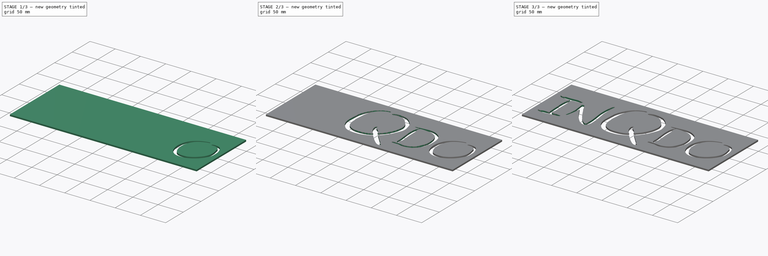
[diagram: build sequence overview — one tinted view per stage of 3, left to right]
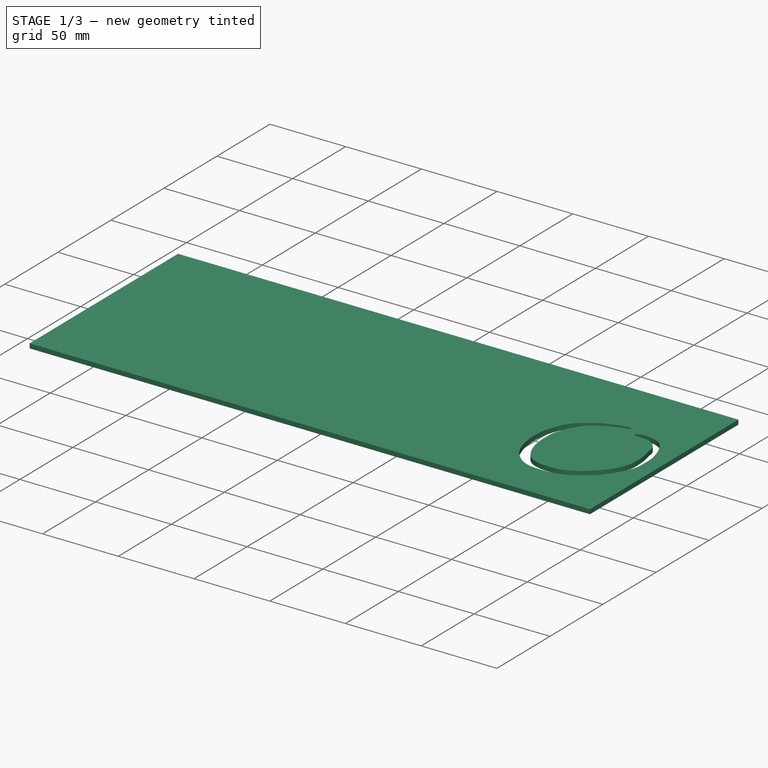
[diagram: stage 1 of 3 — iso view after this stage's code; geometry added in this stage tinted green]
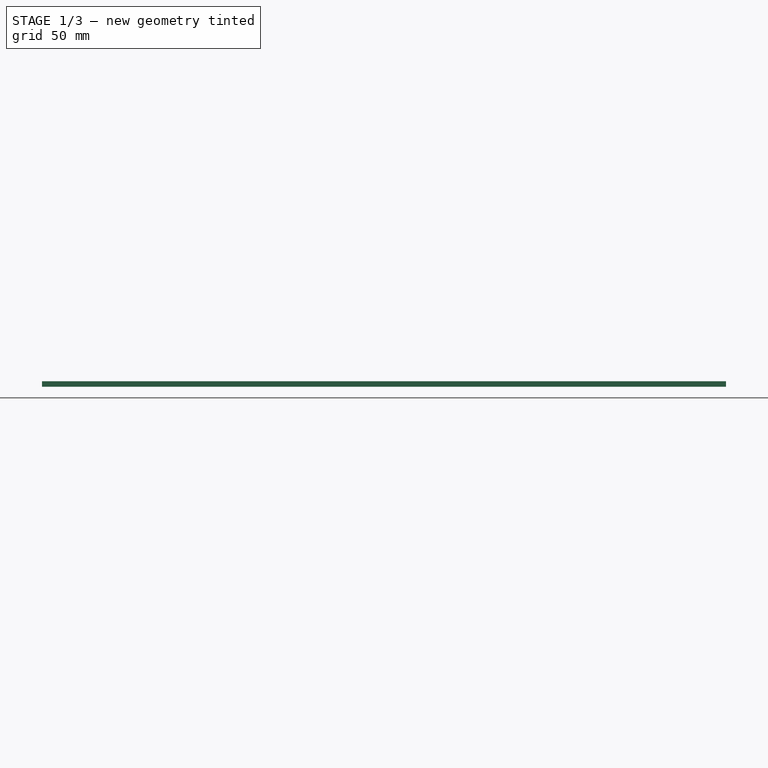
[diagram: stage 1 of 3 — front view after this stage's code; geometry added in this stage tinted green]
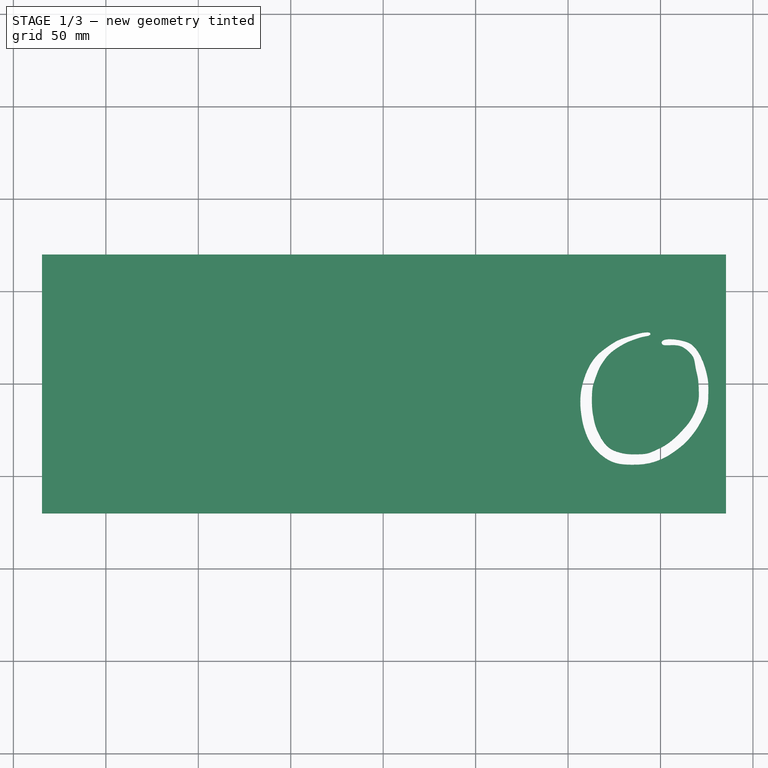
[diagram: stage 1 of 3 — top view after this stage's code; geometry added in this stage tinted green]
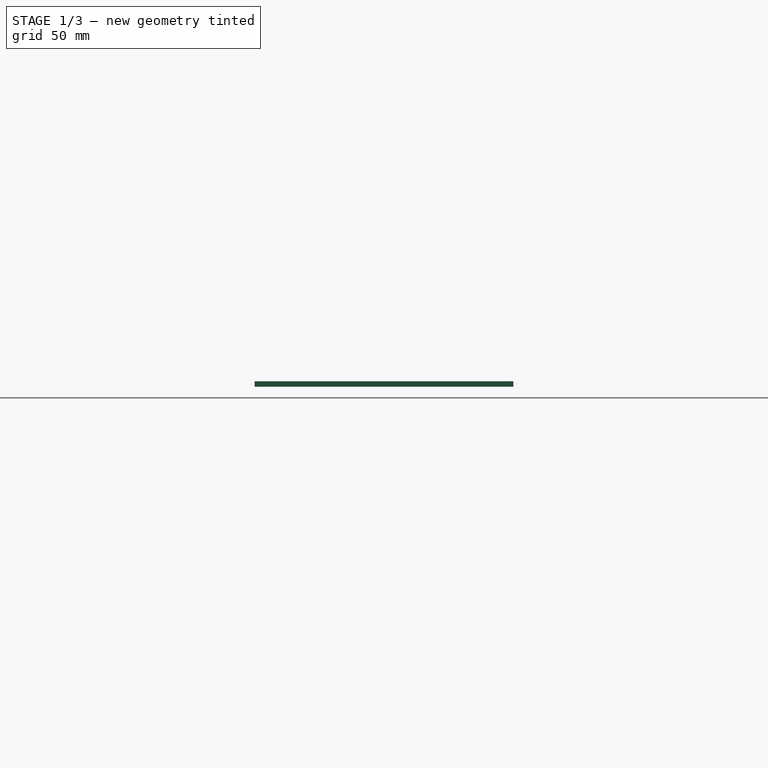
[diagram: stage 1 of 3 — right view after this stage's code; geometry added in this stage tinted green]
FCSTD DOCUMENT  (FreeCAD 0.19R)
Label: inqdoLogo
License: All rights reserved
LicenseURL: http://en.wikipedia.org/wiki/All_rights_reserved
objects: App::MeasureDistance×21, Sketcher::SketchObject×6, PartDesign::Pocket×5, PartDesign::Pad×1, PartDesign::Body×1
note: 19 computed .brp shape members not serialized (recipe doc carries the construction recipe); baked Part::Feature solids carry a one-line shape summary decoded from their .brp

FEATURE [Sketcher::SketchObject] Sketch005
  FullyConstrained = false
  MapMode = 5
  Support = -> [XY_Plane]
  sketch-geometry (4):
    g0: LineSegment StartX=-184.555 StartY=69.9349 StartZ=0 EndX=185.445 EndY=69.9349 EndZ=0
    g1: LineSegment StartX=185.445 StartY=69.9349 StartZ=0 EndX=185.445 EndY=-70.0651 EndZ=0
    g2: LineSegment StartX=185.445 StartY=-70.0651 StartZ=0 EndX=-184.555 EndY=-70.0651 EndZ=0
    g3: LineSegment StartX=-184.555 StartY=-70.0651 StartZ=0 EndX=-184.555 EndY=69.9349 EndZ=0
  constraints (10):
    c: Coincident(g0,g1)
    c: Coincident(g1,g2)
    c: Coincident(g2,g3)
    c: Coincident(g3,g0)
    c: Horizontal(g0)
    c: Horizontal(g2)
    c: Vertical(g1)
    c: Vertical(g3)
    c: DistanceX(g0,g0) = 370
    c: DistanceY(g3,g3) = 140
FEATURE [PartDesign::Pad] Pad
  Direction = (0,0,1)
  Length = 3
  Length2 = 10
  Profile = -> Sketch005
  Type = 0
FEATURE [Sketcher::SketchObject] Sketch011  label="O001"
  FullyConstrained = false
  MapMode = 5
  Placement = pos=(0,0,3) rot=(0,0,1;0rad)
  Support = -> [Pad]
  sketch-geometry (239):
    g0-g119: Circle x120 (B-spline internal-alignment scaffolding for g120; pole/knot coordinates omitted)
    g120: BSplineCurve PolesCount=120 KnotsCount=118 Degree=3 IsPeriodic=0
    g121-g238: GeomPoint x118 (B-spline internal-alignment scaffolding for g120; pole/knot coordinates omitted)
  constraints (10):
    c: Weight(g0) = 1
    c: Equal(g0, g1-g117) x117
    c: PointOnObject(g117,g0)
    c: Equal(g0,g118)
    c: PointOnObject(g118,g117)
    c: Equal(g0,g119)
    c: Coincident(g120,g1)
    c: InternalAlignment(g0-g119 -> g120) x120
    c: InternalAlignment(g121-g238 -> g120) x118
    c: Coincident(g120,g120)
FEATURE [PartDesign::Pocket] Pocket
  BaseFeature = -> Pad
  Length = 3
  Length2 = 5
  Profile = -> Sketch011
  Type = 0
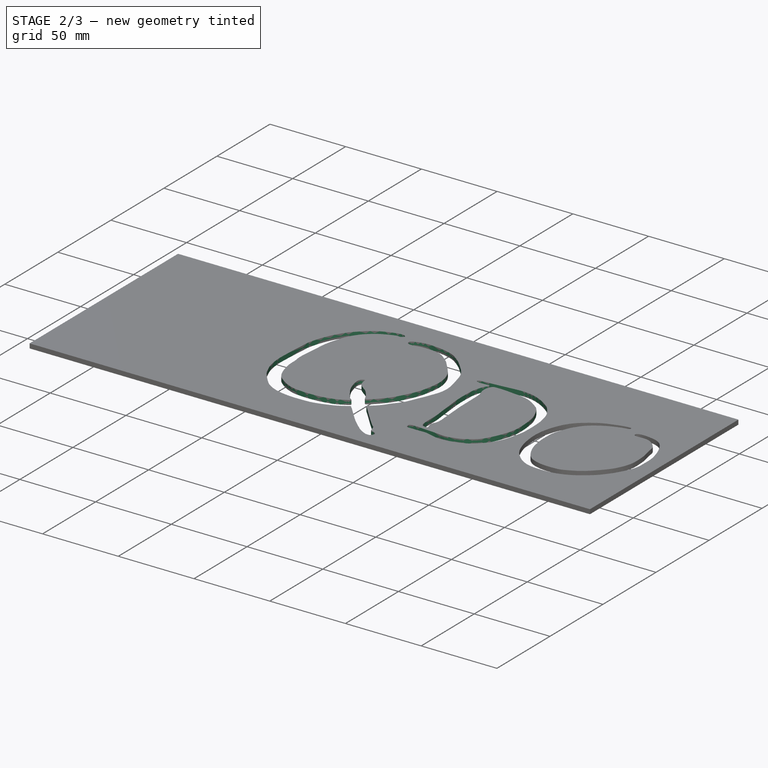
[diagram: stage 2 of 3 — iso view after this stage's code; geometry added in this stage tinted green]
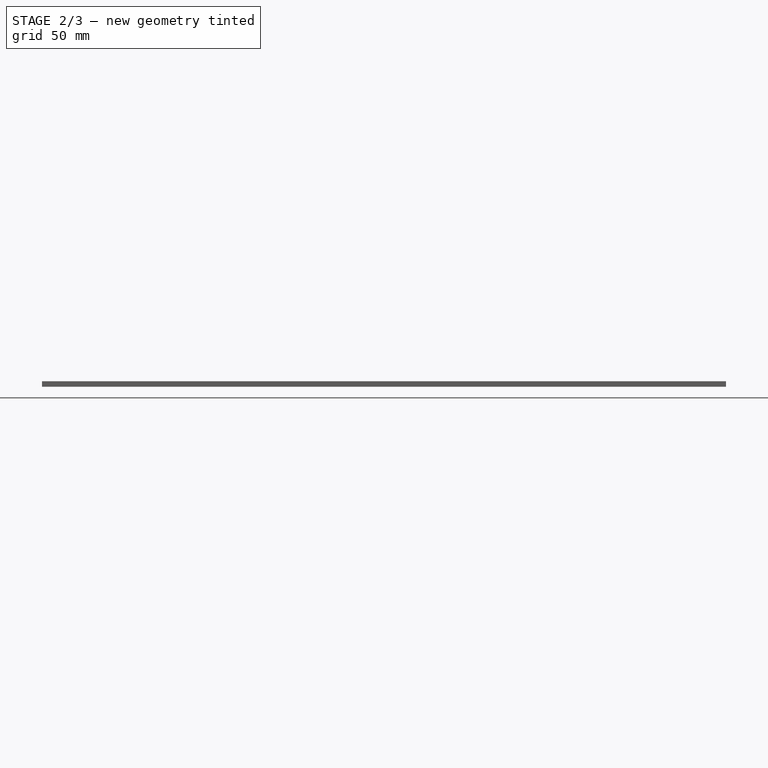
[diagram: stage 2 of 3 — front view after this stage's code; geometry added in this stage tinted green]
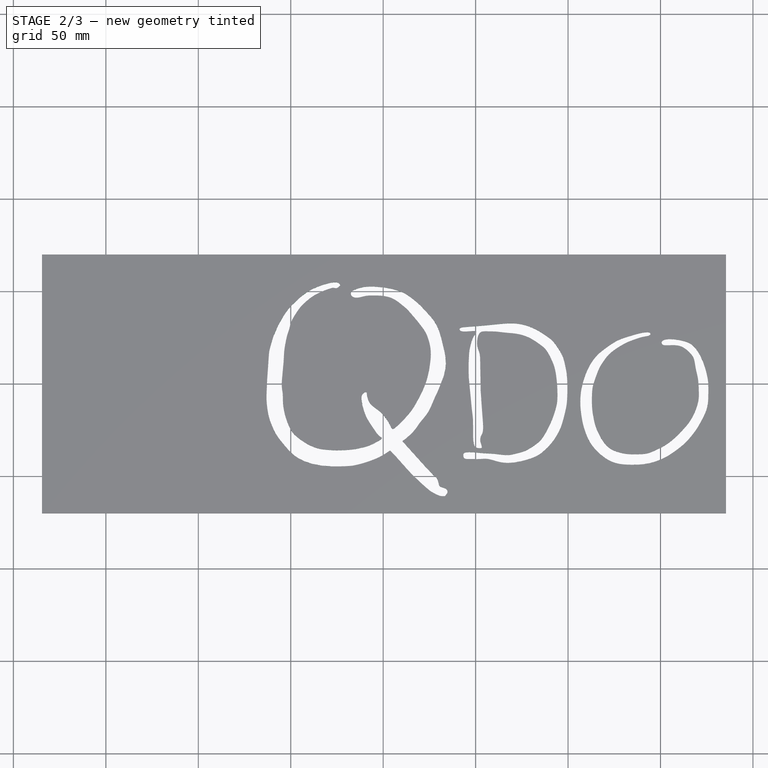
[diagram: stage 2 of 3 — top view after this stage's code; geometry added in this stage tinted green]
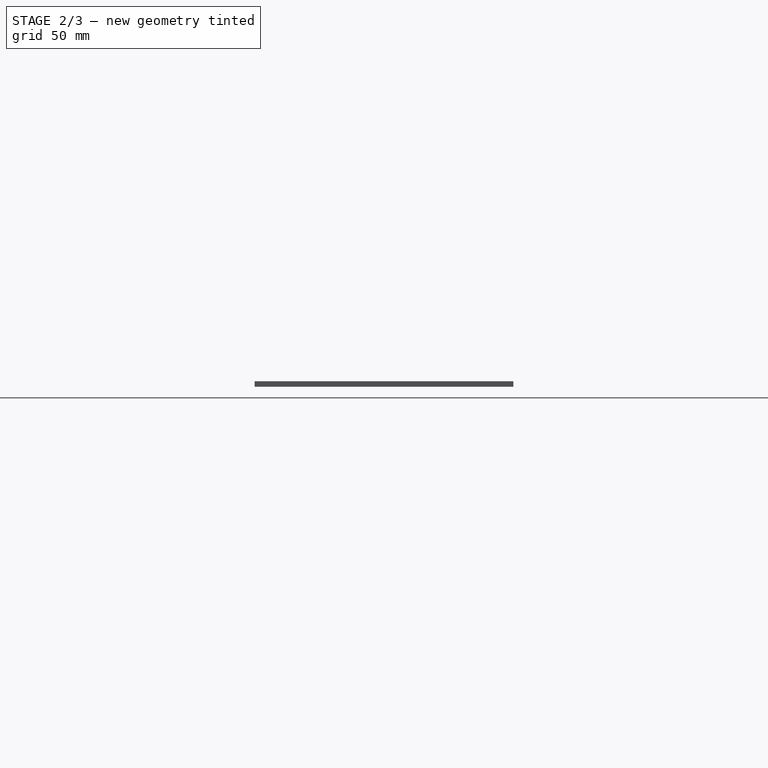
[diagram: stage 2 of 3 — right view after this stage's code; geometry added in this stage tinted green]
FEATURE [Sketcher::SketchObject] Sketch009  label="D001"
  FullyConstrained = false
  MapMode = 5
  Placement = pos=(0,0,3) rot=(0,0,1;0rad)
  Support = -> [Pocket]
  sketch-geometry (267):
    g0-g133: Circle x134 (B-spline internal-alignment scaffolding for g134; pole/knot coordinates omitted)
    g134: BSplineCurve PolesCount=134 KnotsCount=132 Degree=3 IsPeriodic=0
    g135-g266: GeomPoint x132 (B-spline internal-alignment scaffolding for g134; pole/knot coordinates omitted)
  constraints (22):
    c: Weight(g0) = 1
    c: Equal(g0,g1)
    c: PointOnObject(g1,g0)
    c: Equal(g0, g2-g122) x121
    c: PointOnObject(g122,g121)
    c: Equal(g0,g123)
    c: Equal(g0,g124)
    c: Equal(g0,g125)
    c: PointOnObject(g125,g124)
    c: Equal(g0,g126)
    c: Equal(g0,g127)
    c: Equal(g0,g128)
    c: PointOnObject(g128,g127)
    c: Equal(g0,g129)
    c: Equal(g0,g130)
    c: Equal(g0,g131)
    c: PointOnObject(g131,g129)
    c: Equal(g0,g132)
    c: Equal(g0,g133)
    c: Coincident(g134,g0)
    c: InternalAlignment(g0-g133 -> g134) x134
    c: InternalAlignment(g135-g266 -> g134) x132
FEATURE [PartDesign::Pocket] Pocket001
  BaseFeature = -> Pocket
  Length = 3
  Length2 = 5
  Profile = -> Sketch009
  Type = 0
FEATURE [Sketcher::SketchObject] Sketch008  label="Q001"
  FullyConstrained = false
  MapMode = 5
  Placement = pos=(0,0,3) rot=(0,0,1;0rad)
  Support = -> [Pocket001]
  sketch-geometry (471):
    g0-g235: Circle x236 (B-spline internal-alignment scaffolding for g236; pole/knot coordinates omitted)
    g236: BSplineCurve PolesCount=236 KnotsCount=234 Degree=3 IsPeriodic=0
    g237-g470: GeomPoint x234 (B-spline internal-alignment scaffolding for g236; pole/knot coordinates omitted)
  constraints (41):
    c: Weight(g0) = 1
    c: Equal(g0,g1)
    c: Equal(g0,g2)
    c: Equal(g0,g3)
    c: PointOnObject(g3,g1)
    c: Equal(g0, g4-g44) x41
    c: PointOnObject(g44,g-2)
    c: Equal(g0,g45)
    c: Equal(g0,g46)
    c: PointOnObject(g46,g45)
    c: Equal(g0, g47-g63) x17
    c: PointOnObject(g63,g61)
    c: Equal(g0,g64)
    c: PointOnObject(g64,g63)
    c: Equal(g0,g65)
    c: PointOnObject(g65,g64)
    c: Equal(g0, g66-g71) x6
    c: PointOnObject(g71,g70)
    c: Equal(g0,g72)
    c: Equal(g0,g73)
    c: Equal(g0,g74)
    c: PointOnObject(g74,g73)
    c: Equal(g0, g75-g85) x11
    c: PointOnObject(g85,g83)
    c: Equal(g0, g86-g124) x39
    c: PointOnObject(g124,g123)
    c: Equal(g0, g125-g170) x46
    c: PointOnObject(g170,g168)
    c: Equal(g0,g171)
    c: PointOnObject(g171,g170)
    c: Equal(g0, g172-g182) x11
    c: PointOnObject(g182,g181)
    c: Equal(g0,g183)
    c: Equal(g0,g184)
    c: PointOnObject(g184,g182)
    c: Equal(g0, g185-g230) x46
    c: PointOnObject(g230,g229)
    c: Equal(g0, g231-g235) x5
    c: Coincident(g236,g0)
    c: InternalAlignment(g0-g235 -> g236) x236
    c: InternalAlignment(g237-g470 -> g236) x234
FEATURE [PartDesign::Pocket] Pocket002
  BaseFeature = -> Pocket001
  Length = 3
  Length2 = 5
  Profile = -> Sketch008
  Type = 0
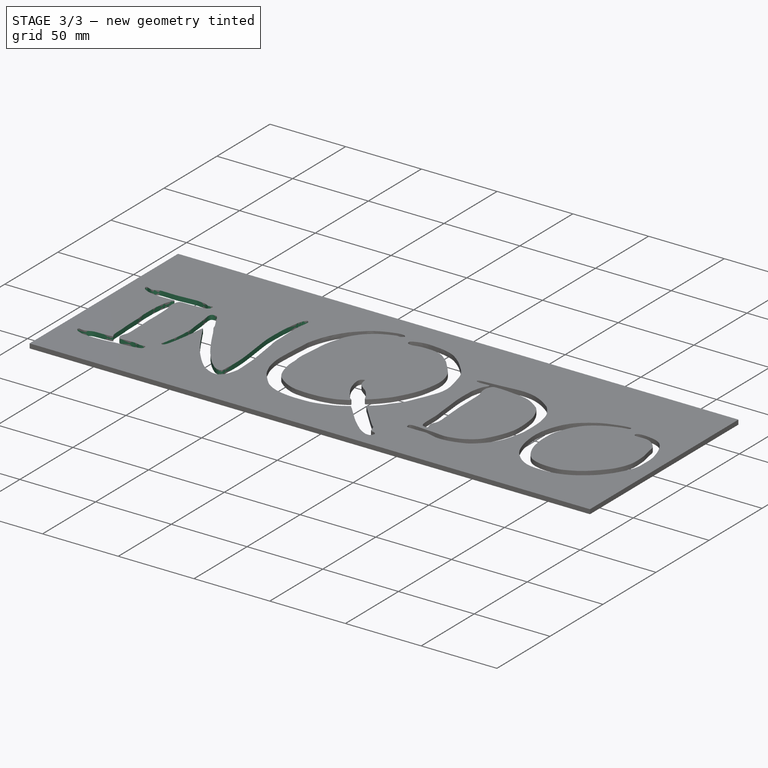
[diagram: stage 3 of 3 — iso view after this stage's code; geometry added in this stage tinted green]
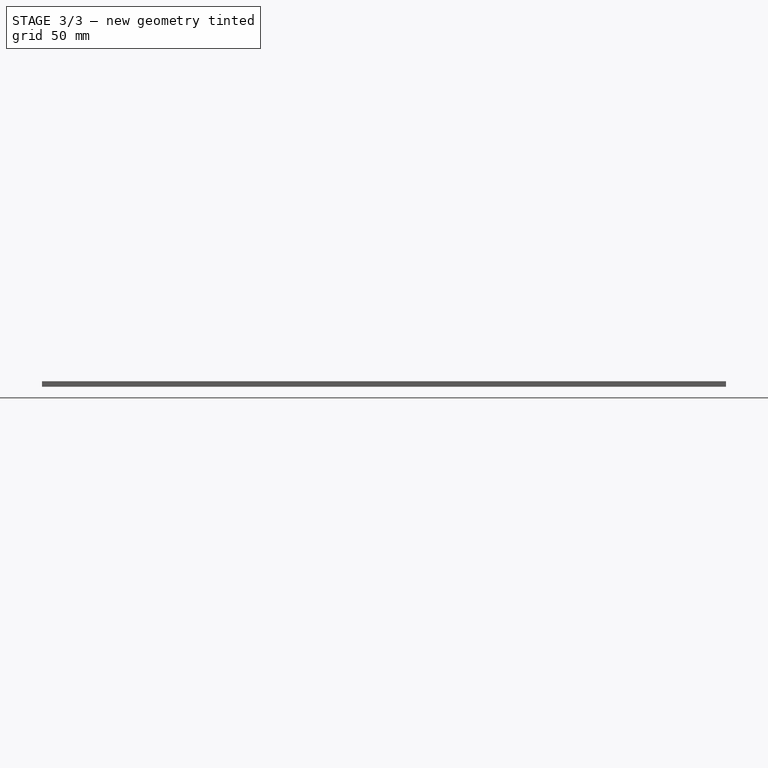
[diagram: stage 3 of 3 — front view after this stage's code; geometry added in this stage tinted green]
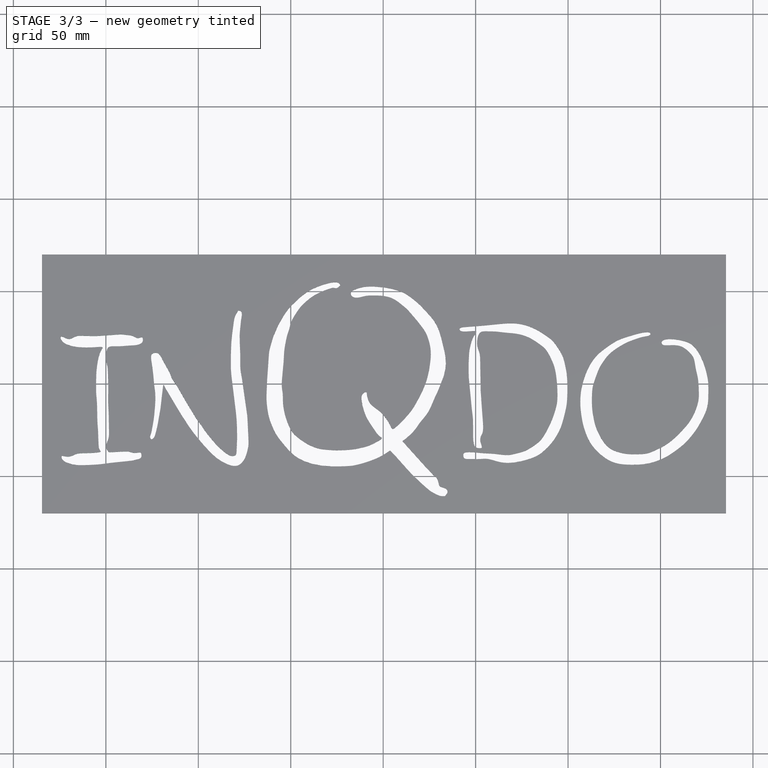
[diagram: stage 3 of 3 — top view after this stage's code; geometry added in this stage tinted green]
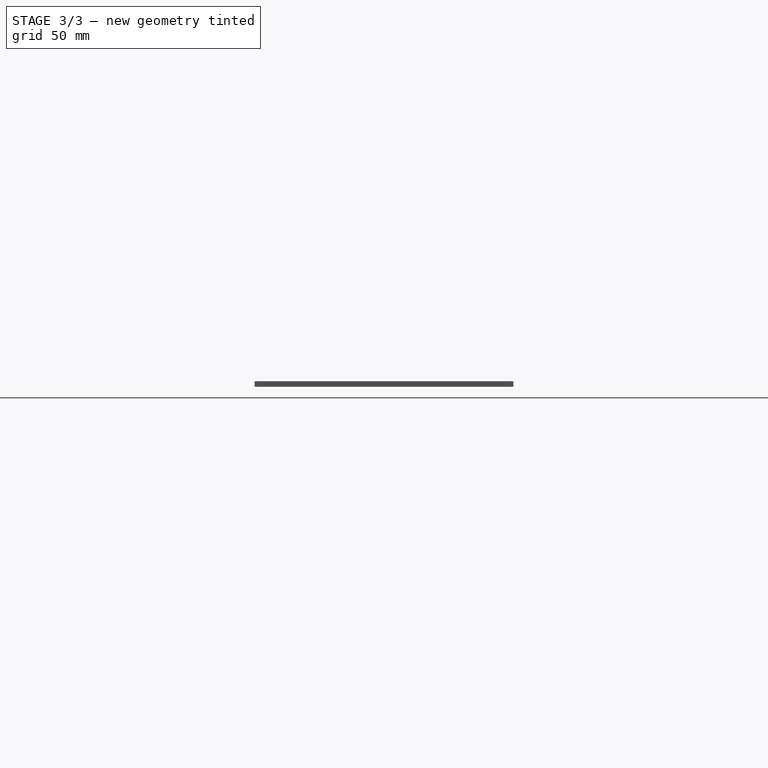
[diagram: stage 3 of 3 — right view after this stage's code; geometry added in this stage tinted green]
FEATURE [Sketcher::SketchObject] Sketch007  label="N001"
  FullyConstrained = false
  MapMode = 5
  Placement = pos=(0,0,3) rot=(0,0,1;0rad)
  Support = -> [Pocket002]
  sketch-geometry (239):
    g0-g119: Circle x120 (B-spline internal-alignment scaffolding for g120; pole/knot coordinates omitted)
    g120: BSplineCurve PolesCount=120 KnotsCount=118 Degree=3 IsPeriodic=0
    g121-g238: GeomPoint x118 (B-spline internal-alignment scaffolding for g120; pole/knot coordinates omitted)
  constraints (50):
    c: Weight(g0) = 1
    c: Equal(g0,g1)
    c: PointOnObject(g1,g0)
    c: Equal(g0,g2)
    c: PointOnObject(g2,g1)
    c: Equal(g0,g3)
    c: PointOnObject(g3,g2)
    c: Equal(g0,g4)
    c: PointOnObject(g4,g3)
    c: Equal(g0,g5)
    c: Equal(g0,g6)
    c: PointOnObject(g6,g5)
    c: Equal(g0, g7-g10) x4
    c: PointOnObject(g10,g-1)
    c: Equal(g0, g11-g28) x18
    c: PointOnObject(g28,g27)
    c: Equal(g0,g29)
    c: Equal(g0,g30)
    c: PointOnObject(g30,g29)
    c: Equal(g0,g31)
    c: Equal(g0,g32)
    c: PointOnObject(g32,g31)
    c: Equal(g0,g33)
    c: PointOnObject(g33,g32)
    c: Equal(g0, g34-g48) x15
    c: PointOnObject(g48,g47)
    c: Equal(g0,g49)
    c: Equal(g0,g50)
    c: Equal(g0,g51)
    c: PointOnObject(g51,g49)
    c: Equal(g0,g52)
    c: PointOnObject(g52,g51)
    c: Equal(g0,g53)
    c: Equal(g0,g54)
    c: PointOnObject(g54,g53)
    c: Equal(g0, g55-g93) x39
    c: PointOnObject(g93,g92)
    c: Equal(g0,g94)
    c: PointOnObject(g94,g92)
    c: Equal(g0,g95)
    c: PointOnObject(g95,g92)
    c: Equal(g0, g96-g102) x7
    c: PointOnObject(g102,g101)
    c: Equal(g0, g103-g117) x15
    c: PointOnObject(g117,g116)
    c: Equal(g0,g118)
    c: Equal(g0,g119)
    c: Coincident(g120,g0)
    c: InternalAlignment(g0-g119 -> g120) x120
    c: InternalAlignment(g121-g238 -> g120) x118
FEATURE [PartDesign::Pocket] Pocket003
  BaseFeature = -> Pocket002
  Length = 3
  Length2 = 5
  Profile = -> Sketch007
  Type = 0
FEATURE [Sketcher::SketchObject] Sketch006  label="I001"
  FullyConstrained = false
  MapMode = 5
  Placement = pos=(0,0,3) rot=(0,0,1;0rad)
  Support = -> [Pocket003]
  sketch-geometry (203):
    g0-g101: Circle x102 (B-spline internal-alignment scaffolding for g102; pole/knot coordinates omitted)
    g102: BSplineCurve PolesCount=102 KnotsCount=100 Degree=3 IsPeriodic=0
    g103-g202: GeomPoint x100 (B-spline internal-alignment scaffolding for g102; pole/knot coordinates omitted)
  constraints (26):
    c: Weight(g0) = 1
    c: Equal(g0, g1-g7) x7
    c: PointOnObject(g7,g6)
    c: Equal(g0, g8-g11) x4
    c: PointOnObject(g11,g10)
    c: Equal(g0,g12)
    c: PointOnObject(g12,g11)
    c: Equal(g0, g13-g38) x26
    c: PointOnObject(g38,g37)
    c: Equal(g0, g39-g46) x8
    c: PointOnObject(g46,g45)
    c: Equal(g0,g47)
    c: PointOnObject(g47,g46)
    c: Equal(g0, g48-g60) x13
    c: PointOnObject(g60,g59)
    c: Equal(g0, g61-g69) x9
    c: PointOnObject(g69,g68)
    c: Equal(g0,g70)
    c: Equal(g0,g71)
    c: PointOnObject(g71,g70)
    c: Equal(g0, g72-g95) x24
    c: PointOnObject(g95,g94)
    c: Equal(g0, g96-g101) x6
    c: Coincident(g102,g0)
    c: InternalAlignment(g0-g101 -> g102) x102
    c: InternalAlignment(g103-g202 -> g102) x100
FEATURE [PartDesign::Pocket] Pocket004
  BaseFeature = -> Pocket003
  Length = 3
  Length2 = 5
  Profile = -> Sketch006
  Type = 0
FEATURE [PartDesign::Body] Body
  Group = -> [Sketch005,Pad,Sketch006,Sketch007,Sketch008,Sketch009,Sketch011,Pocket,Pocket001,Pocket002,Pocket003,Pocket004]
  Origin = -> Origin
  Tip = -> Pocket004
FEATURE [App::MeasureDistance] Distance  label="Distance: 43,41 mm"
  Distance = 43.412
  P1 = (-173.608,23.1574,3)
  P2 = (-130.198,22.7008,3)
FEATURE [App::MeasureDistance] Distance001  label="Distance: 56,67 mm"
  Distance = 56.6655
  P1 = (-152.164,19.9271,3)
  P2 = (-152.837,-36.7345,3)
FEATURE [App::MeasureDistance] Distance002  label="Distance: 42,60 mm"
  Distance = 42.5995
  P1 = (-173.796,-41.9061,3)
  P2 = (-131.233,-40.1387,3)
FEATURE [App::MeasureDistance] Distance003  label="Distance: 46,54 mm"
  Distance = 46.5399
  P1 = (-124.707,-29.7821,3)
  P2 = (-122.747,16.7164,3)
FEATURE [App::MeasureDistance] Distance004  label="Distance: 76,15 mm"
  Distance = 76.1533
  P1 = (-124.222,16.6176,3)
  P2 = (-77.8523,-43.7908,3)
FEATURE [App::MeasureDistance] Distance005  label="Distance: 82,92 mm"
  Distance = 82.9176
  P1 = (-77.783,-43.7313,3)
  P2 = (-78.646,39.1818,3)
FEATURE [App::MeasureDistance] Distance006  label="Distance: 40,67 mm"
  Distance = 40.6709
  P1 = (-23.1086,53.2533,3)
  P2 = (-57.0321,30.8185,3)
FEATURE [App::MeasureDistance] Distance007  label="Distance: 60,72 mm"
  Distance = 60.7156
  P1 = (-56.8712,31.1428,3)
  P2 = (-56.1711,-29.5688,3)
FEATURE [App::MeasureDistance] Distance008  label="Distance: 55,09 mm"
  Distance = 55.0881
  P1 = (-55.6343,-30.2464,3)
  P2 = (-1.52934,-40.6072,3)
FEATURE [App::MeasureDistance] Distance009  label="Distance: 66,27 mm"
  Distance = 66.2719
  P1 = (-3.76921,-40.2364,3)
  P2 = (33.5161,14.552,3)
FEATURE [App::MeasureDistance] Distance010  label="Distance: 46,01 mm"
  Distance = 46.0064
  P1 = (-17.4019,48.2951,3)
  P2 = (26.6397,34.9938,3)
FEATURE [App::MeasureDistance] Distance011  label="Distance: 29,78 mm"
  Distance = 29.7773
  P1 = (27.0411,34.4441,3)
  P2 = (32.9726,5.26354,3)
FEATURE [App::MeasureDistance] Distance012  label="Distance: 66,00 mm"
  Distance = 66.0021
  P1 = (52.9363,-34.7504,3)
  P2 = (50.9357,31.2214,3)
FEATURE [App::MeasureDistance] Distance013  label="Distance: 48,95 mm"
  Distance = 48.9525
  P1 = (42.0316,28.6217,3)
  P2 = (90.7571,23.9136,3)
FEATURE [App::MeasureDistance] Distance014  label="Distance: 58,74 mm"
  Distance = 58.7371
  P1 = (91.647,23.0168,3)
  P2 = (87.4651,-35.5712,3)
FEATURE [App::MeasureDistance] Distance015  label="Distance: 44,04 mm"
  Distance = 44.044
  P1 = (87.3721,-35.6578,3)
  P2 = (43.5156,-39.7169,3)
FEATURE [App::MeasureDistance] Distance016  label="Distance: 41,89 mm"
  Distance = 41.894
  P1 = (144.532,26.5988,3)
  P2 = (109.239,4.02714,3)
FEATURE [App::MeasureDistance] Distance017  label="Distance: 40,99 mm"
  Distance = 40.9924
  P1 = (109.175,3.83251,3)
  P2 = (116.017,-36.585,3)
FEATURE [App::MeasureDistance] Distance018  label="Distance: 43,28 mm"
  Distance = 43.275
  P1 = (115.774,-36.3245,3)
  P2 = (159.047,-36.7105,3)
FEATURE [App::MeasureDistance] Distance019  label="Distance: 38,29 mm"
  Distance = 38.2891
  P1 = (158.398,-37.0352,3)
  P2 = (175.855,-2.95732,3)
FEATURE [App::MeasureDistance] Distance020  label="Distance: 36,46 mm"
  Distance = 36.4593
  P1 = (175.892,-3.78521,3)
  P2 = (151.978,23.7358,3)
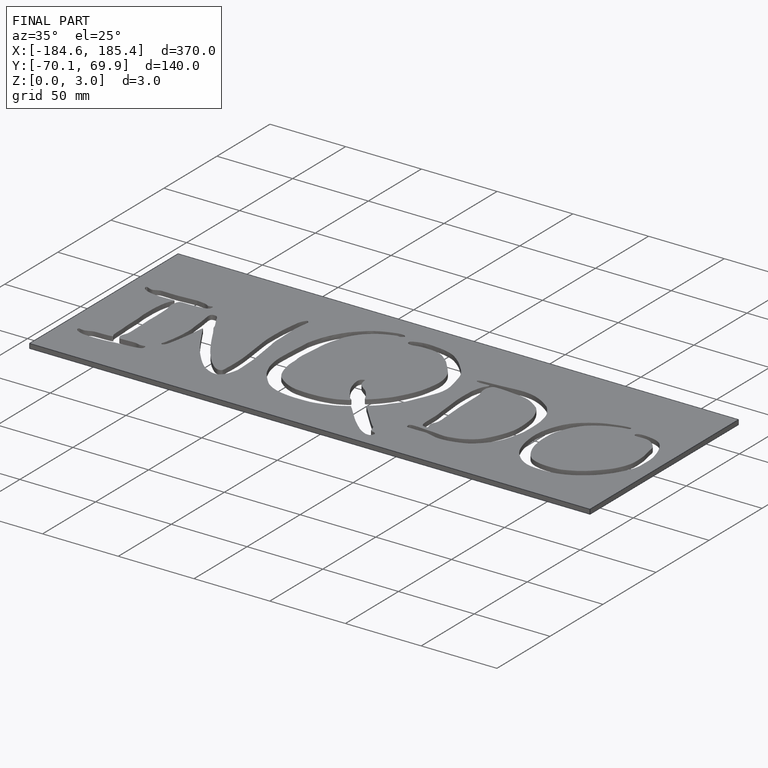
[diagram: finished part — iso view with bounding-box wireframe]
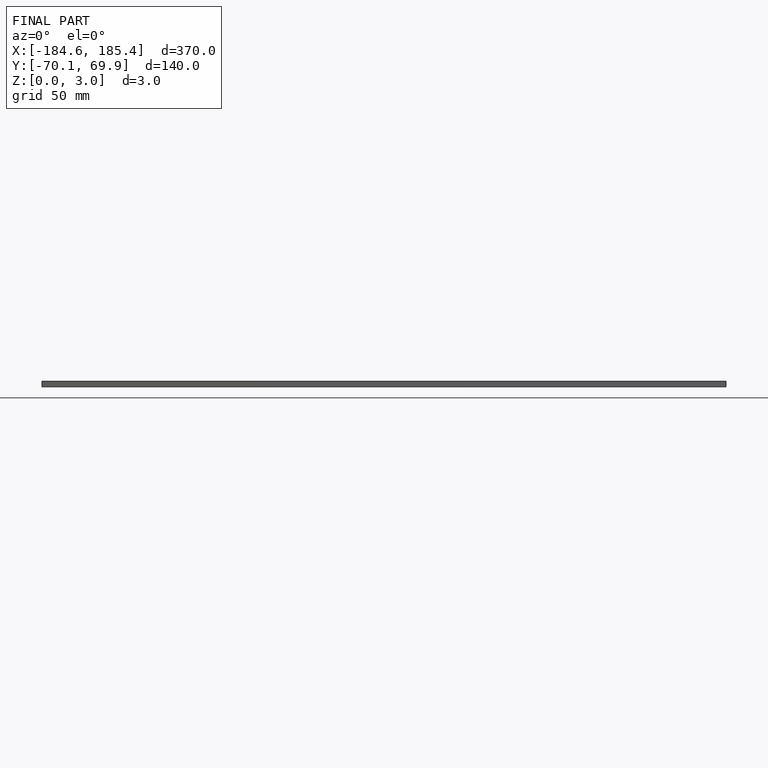
[diagram: finished part — front view with bounding-box wireframe]
